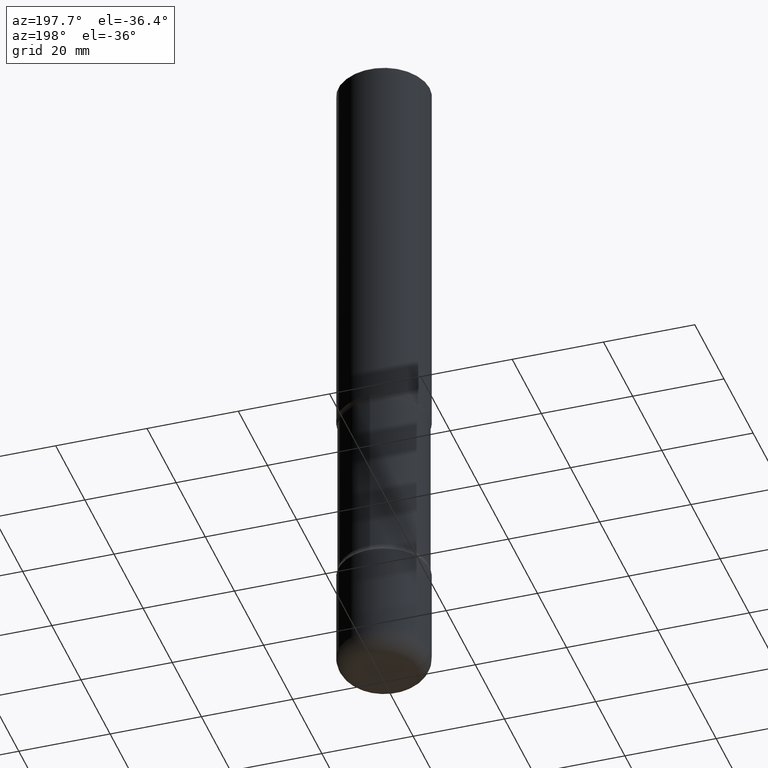
[diagram: clean part render]
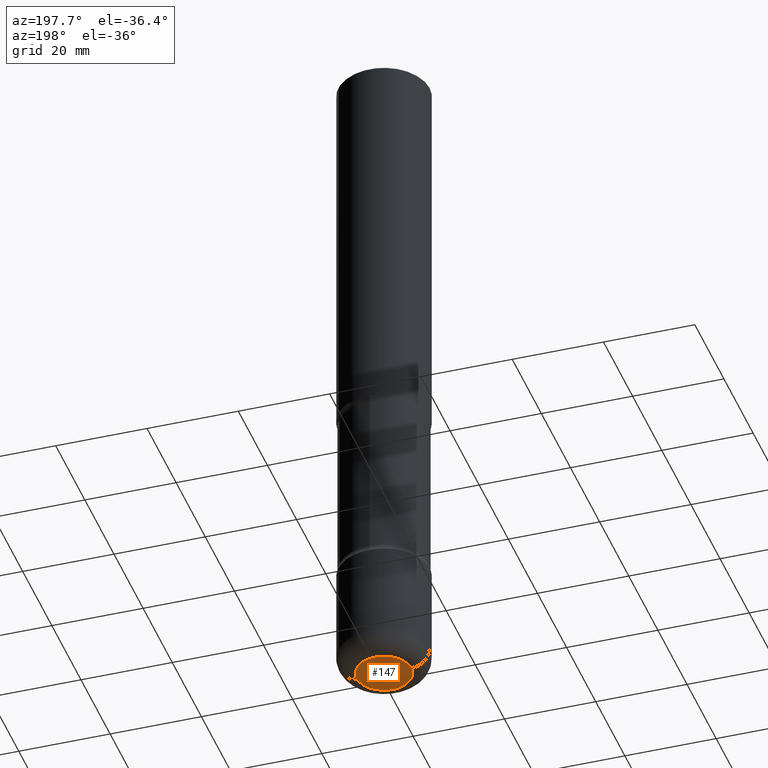
[diagram: same view with one face highlighted and labeled with its STEP entity id]
A machine part, auxiliary view. The second image highlights one B-rep face of the part: STEP entity #147.
In plain terms, the highlighted planar face has unit normal (0, -0, -1).
Its self-contained STEP definition (entity closure, byte-faithful):
#1 = EDGE_CURVE ( 'NONE', #225, #136, #164, .T. ) ;
#8 = CARTESIAN_POINT ( 'NONE',  ( -0.2362000000000002709, -1.810613454482786010E-14, -5.905499999999998195 ) ) ;
#44 = CARTESIAN_POINT ( 'NONE',  ( 1.444171603492631822E-28, -2.061894304653818881E-14, -5.905499999999998195 ) ) ;
#49 = DIRECTION ( 'NONE',  ( 1.000000000000000000, -6.982962677686265133E-15, 0.000000000000000000 ) ) ;
#54 = FACE_OUTER_BOUND ( 'NONE', #149, .T. ) ;
#93 = DIRECTION ( 'NONE',  ( -1.000000000000000000, 6.982962677686265922E-15, -4.876176775795935793E-29 ) ) ;
#136 = VERTEX_POINT ( 'NONE', #441 ) ;
#147 = ADVANCED_FACE ( 'NONE', ( #54 ), #189, .T. ) ;
#149 = EDGE_LOOP ( 'NONE', ( #366, #304 ) ) ;
#151 = EDGE_CURVE ( 'NONE', #136, #225, #364, .T. ) ;
#164 = CIRCLE ( 'NONE', #556, 0.2362000000000002709 ) ;
#179 = DIRECTION ( 'NONE',  ( 2.438088387897960049E-29, -3.491481338843145188E-15, -1.000000000000000000 ) ) ;
#189 = PLANE ( 'NONE',  #374 ) ;
#217 = DIRECTION ( 'NONE',  ( -2.445468806185136597E-29, 3.491481338843145583E-15, 1.000000000000000000 ) ) ;
#225 = VERTEX_POINT ( 'NONE', #8 ) ;
#266 = DIRECTION ( 'NONE',  ( -2.445468806185136597E-29, 3.491481338843145583E-15, 1.000000000000000000 ) ) ;
#304 = ORIENTED_EDGE ( 'NONE', *, *, #1, .F. ) ;
#349 = CARTESIAN_POINT ( 'NONE',  ( 1.444171603492631822E-28, -2.061894304653818881E-14, -5.905499999999998195 ) ) ;
#364 = CIRCLE ( 'NONE', #550, 0.2362000000000002709 ) ;
#366 = ORIENTED_EDGE ( 'NONE', *, *, #151, .F. ) ;
#374 = AXIS2_PLACEMENT_3D ( 'NONE', #349, #179, #93 ) ;
#395 = CARTESIAN_POINT ( 'NONE',  ( 1.444171603492631822E-28, -2.061894304653818881E-14, -5.905499999999998195 ) ) ;
#441 = CARTESIAN_POINT ( 'NONE',  ( 0.2362000000000002709, -2.226831883100768849E-14, -5.905499999999998195 ) ) ;
#550 = AXIS2_PLACEMENT_3D ( 'NONE', #395, #266, #49 ) ;
#556 = AXIS2_PLACEMENT_3D ( 'NONE', #44, #217, #560 ) ;
#560 = DIRECTION ( 'NONE',  ( 1.000000000000000000, -6.982962677686265133E-15, 0.000000000000000000 ) ) ;